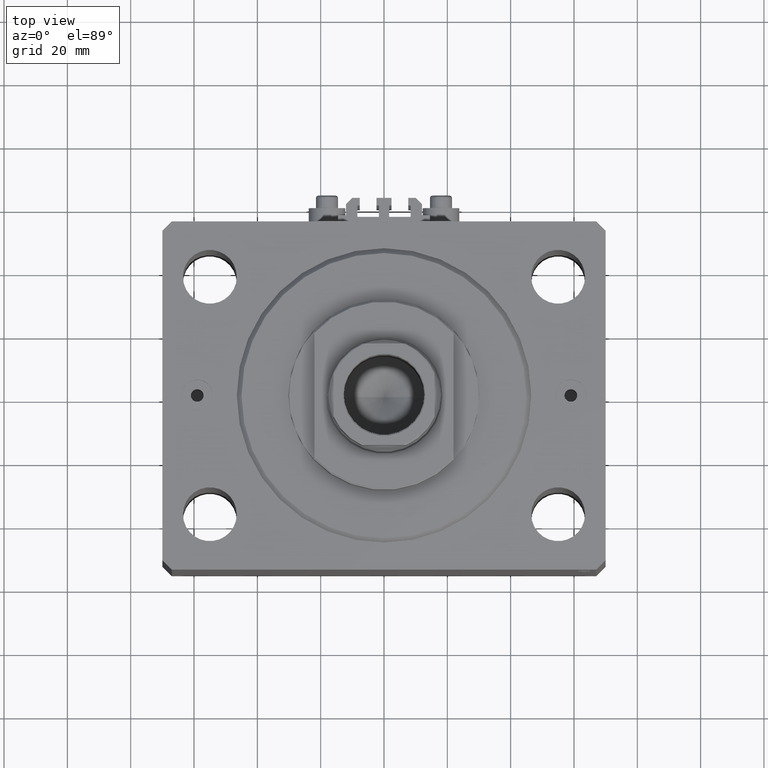
[diagram: clean part render]
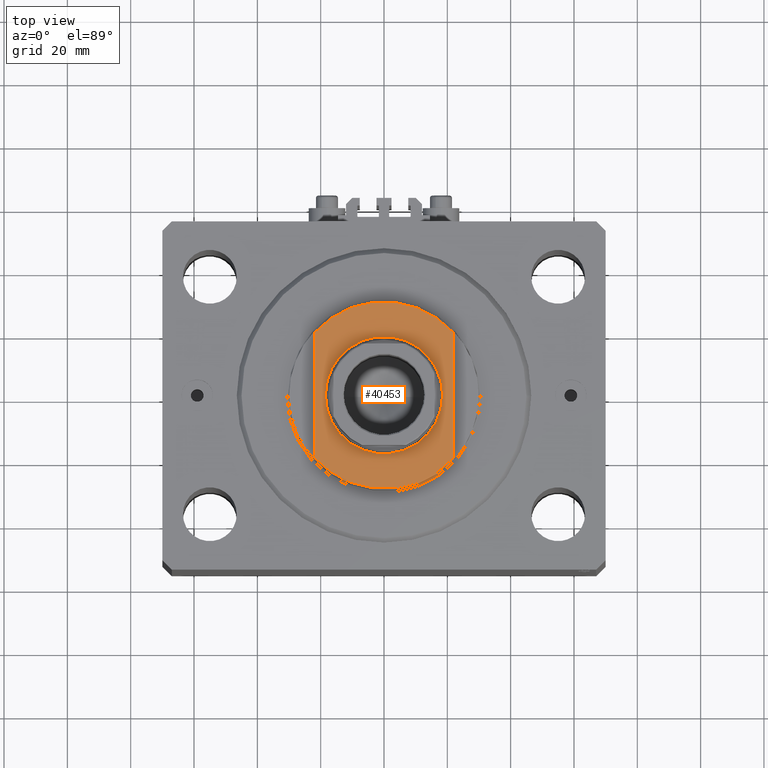
[diagram: same view with one face highlighted and labeled with its STEP entity id]
A machine part, top view. The second image highlights one B-rep face of the part: STEP entity #40453.
In plain terms, the highlighted planar face has unit normal (0, 0, 1).
Its self-contained STEP definition (entity closure, byte-faithful):
#208 = EDGE_CURVE ( 'NONE', #14583, #9279, #28452, .T. ) ;
#870 = DIRECTION ( 'NONE',  ( -1.000000000000000000, 0.000000000000000000, 0.000000000000000000 ) ) ;
#881 = CARTESIAN_POINT ( 'NONE',  ( -22.00000000000000000, 19.65324400703354257, -7.000000000000000000 ) ) ;
#1450 = FACE_OUTER_BOUND ( 'NONE', #11620, .T. ) ;
#1767 = CIRCLE ( 'NONE', #2523, 29.50000000000000000 ) ;
#2080 = CARTESIAN_POINT ( 'NONE',  ( 0.000000000000000000, 0.000000000000000000, -7.000000000000000000 ) ) ;
#2090 = CARTESIAN_POINT ( 'NONE',  ( -22.00000000000000000, -19.65324400703354257, -7.000000000000000000 ) ) ;
#2390 = DIRECTION ( 'NONE',  ( 0.000000000000000000, 0.000000000000000000, -1.000000000000000000 ) ) ;
#2433 = VERTEX_POINT ( 'NONE', #881 ) ;
#2523 = AXIS2_PLACEMENT_3D ( 'NONE', #38206, #2390, #20046 ) ;
#3202 = AXIS2_PLACEMENT_3D ( 'NONE', #24531, #24292, #38878 ) ;
#4906 = ORIENTED_EDGE ( 'NONE', *, *, #36615, .T. ) ;
#5682 = EDGE_CURVE ( 'NONE', #2433, #6416, #25670, .T. ) ;
#6416 = VERTEX_POINT ( 'NONE', #2090 ) ;
#7761 = ORIENTED_EDGE ( 'NONE', *, *, #33295, .T. ) ;
#8617 = EDGE_LOOP ( 'NONE', ( #31660, #7761 ) ) ;
#9279 = VERTEX_POINT ( 'NONE', #43397 ) ;
#9454 = EDGE_CURVE ( 'NONE', #9279, #6416, #39079, .T. ) ;
#10835 = AXIS2_PLACEMENT_3D ( 'NONE', #2080, #31181, #30950 ) ;
#11364 = DIRECTION ( 'NONE',  ( -0.000000000000000000, -0.000000000000000000, 1.000000000000000000 ) ) ;
#11620 = EDGE_LOOP ( 'NONE', ( #4906, #23789, #12050, #23275 ) ) ;
#12050 = ORIENTED_EDGE ( 'NONE', *, *, #9454, .T. ) ;
#12101 = CARTESIAN_POINT ( 'NONE',  ( 18.50000000000003197, 2.265596578422607341E-15, -7.000000000000000000 ) ) ;
#14583 = VERTEX_POINT ( 'NONE', #32941 ) ;
#16013 = PLANE ( 'NONE',  #36803 ) ;
#20046 = DIRECTION ( 'NONE',  ( -1.000000000000000000, 0.000000000000000000, 0.000000000000000000 ) ) ;
#20578 = CARTESIAN_POINT ( 'NONE',  ( 22.00000000000000000, -39.25557285278104303, -7.000000000000000000 ) ) ;
#21865 = DIRECTION ( 'NONE',  ( -0.000000000000000000, -1.000000000000000000, -0.000000000000000000 ) ) ;
#23275 = ORIENTED_EDGE ( 'NONE', *, *, #5682, .F. ) ;
#23789 = ORIENTED_EDGE ( 'NONE', *, *, #208, .T. ) ;
#24292 = DIRECTION ( 'NONE',  ( -0.000000000000000000, -0.000000000000000000, 1.000000000000000000 ) ) ;
#24407 = CIRCLE ( 'NONE', #29026, 18.50000000000003197 ) ;
#24531 = CARTESIAN_POINT ( 'NONE',  ( 0.000000000000000000, 0.000000000000000000, -7.000000000000000000 ) ) ;
#25391 = VERTEX_POINT ( 'NONE', #12101 ) ;
#25444 = CARTESIAN_POINT ( 'NONE',  ( -22.00000000000000000, -39.25557285278104303, -7.000000000000000000 ) ) ;
#25670 = LINE ( 'NONE', #25444, #38977 ) ;
#28452 = LINE ( 'NONE', #20578, #37873 ) ;
#29026 = AXIS2_PLACEMENT_3D ( 'NONE', #33575, #11364, #870 ) ;
#30363 = VERTEX_POINT ( 'NONE', #32096 ) ;
#30950 = DIRECTION ( 'NONE',  ( -1.000000000000000000, 0.000000000000000000, 0.000000000000000000 ) ) ;
#30984 = EDGE_CURVE ( 'NONE', #30363, #25391, #24407, .T. ) ;
#31029 = DIRECTION ( 'NONE',  ( -1.000000000000000000, 0.000000000000000000, -0.000000000000000000 ) ) ;
#31181 = DIRECTION ( 'NONE',  ( 0.000000000000000000, 0.000000000000000000, -1.000000000000000000 ) ) ;
#31660 = ORIENTED_EDGE ( 'NONE', *, *, #30984, .T. ) ;
#32096 = CARTESIAN_POINT ( 'NONE',  ( -18.50000000000003197, 0.000000000000000000, -7.000000000000000000 ) ) ;
#32941 = CARTESIAN_POINT ( 'NONE',  ( 22.00000000000000000, 19.65324400703354257, -7.000000000000000000 ) ) ;
#33295 = EDGE_CURVE ( 'NONE', #25391, #30363, #39024, .T. ) ;
#33575 = CARTESIAN_POINT ( 'NONE',  ( 0.000000000000000000, 0.000000000000000000, -7.000000000000000000 ) ) ;
#34150 = FACE_BOUND ( 'NONE', #8617, .T. ) ;
#35152 = DIRECTION ( 'NONE',  ( 0.000000000000000000, -1.000000000000000000, -0.000000000000000000 ) ) ;
#36615 = EDGE_CURVE ( 'NONE', #2433, #14583, #1767, .T. ) ;
#36803 = AXIS2_PLACEMENT_3D ( 'NONE', #41554, #45128, #31029 ) ;
#37873 = VECTOR ( 'NONE', #35152, 1000.000000000000000 ) ;
#38206 = CARTESIAN_POINT ( 'NONE',  ( 0.000000000000000000, 0.000000000000000000, -7.000000000000000000 ) ) ;
#38878 = DIRECTION ( 'NONE',  ( -1.000000000000000000, 0.000000000000000000, 0.000000000000000000 ) ) ;
#38977 = VECTOR ( 'NONE', #21865, 1000.000000000000000 ) ;
#39024 = CIRCLE ( 'NONE', #3202, 18.50000000000003197 ) ;
#39079 = CIRCLE ( 'NONE', #10835, 29.50000000000000000 ) ;
#40453 = ADVANCED_FACE ( 'NONE', ( #34150, #1450 ), #16013, .T. ) ;
#41554 = CARTESIAN_POINT ( 'NONE',  ( 0.000000000000000000, 0.000000000000000000, -7.000000000000000000 ) ) ;
#43397 = CARTESIAN_POINT ( 'NONE',  ( 22.00000000000000000, -19.65324400703354257, -7.000000000000000000 ) ) ;
#45128 = DIRECTION ( 'NONE',  ( 0.000000000000000000, 0.000000000000000000, -1.000000000000000000 ) ) ;